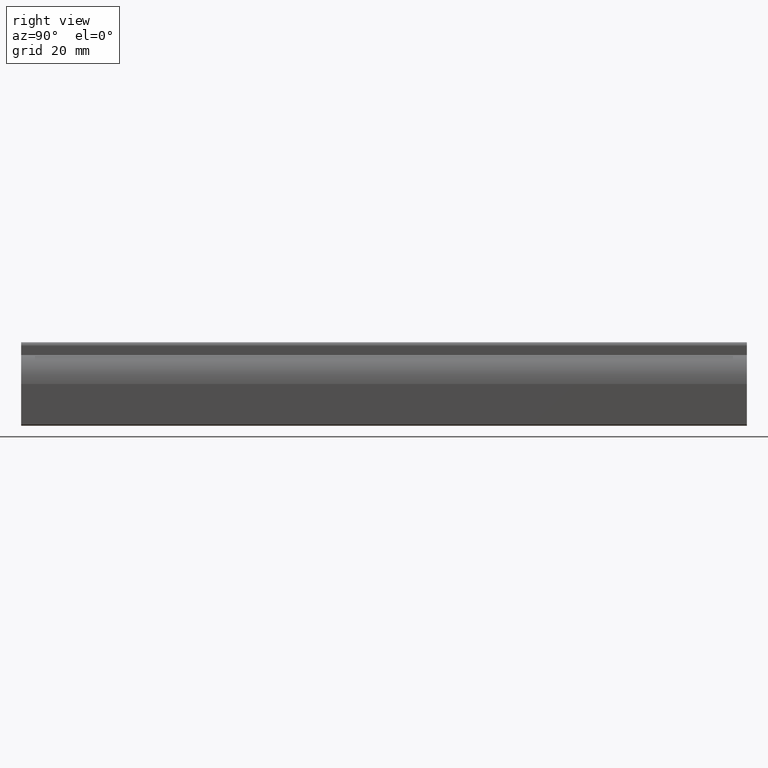
[diagram: clean part render]
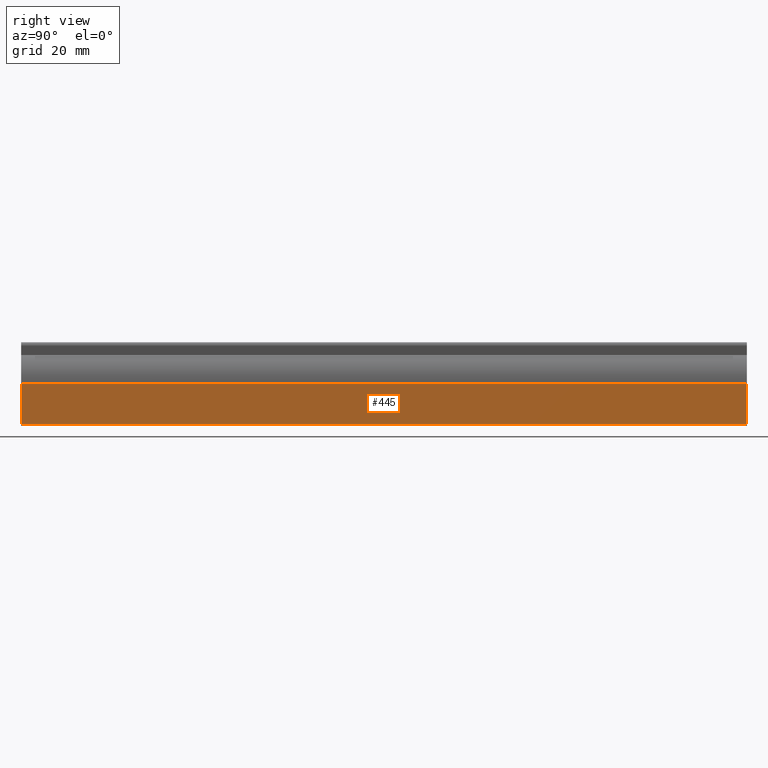
[diagram: same view with one face highlighted and labeled with its STEP entity id]
A machine part, right view. The second image highlights one B-rep face of the part: STEP entity #445.
In plain terms, the highlighted face is a freeform B-spline surface patch.
Its self-contained STEP definition (entity closure, byte-faithful):
#123=CARTESIAN_POINT('',(5.0,0.0,-22.500000000000000));
#124=VERTEX_POINT('',#123);
#138=CARTESIAN_POINT('',(5.0,0.0,-11.500000000000000));
#139=VERTEX_POINT('',#138);
#140=CARTESIAN_POINT('',(5.0,0.0,-22.500000000000000));
#141=CARTESIAN_POINT('',(5.0,0.0,-11.500000000000000));
#142=QUASI_UNIFORM_CURVE('',1,(#140,#141),.UNSPECIFIED.,.F.,.U.);
#143=EDGE_CURVE('',#124,#139,#142,.T.);
#245=CARTESIAN_POINT('',(5.0,200.0,-11.500000000000000));
#246=VERTEX_POINT('',#245);
#260=CARTESIAN_POINT('',(5.0,200.0,-22.500000000000000));
#261=VERTEX_POINT('',#260);
#262=CARTESIAN_POINT('',(5.0,200.0,-22.500000000000000));
#263=CARTESIAN_POINT('',(5.0,200.0,-11.500000000000000));
#264=QUASI_UNIFORM_CURVE('',1,(#262,#263),.UNSPECIFIED.,.F.,.U.);
#265=EDGE_CURVE('',#261,#246,#264,.T.);
#420=CARTESIAN_POINT('',(5.0,200.0,-11.500000000000000));
#421=CARTESIAN_POINT('',(5.0,0.0,-11.500000000000000));
#422=QUASI_UNIFORM_CURVE('',1,(#420,#421),.UNSPECIFIED.,.F.,.U.);
#423=EDGE_CURVE('',#246,#139,#422,.T.);
#430=CARTESIAN_POINT('',(5.0,-9.989999612361194,-10.950550021320129));
#431=CARTESIAN_POINT('',(5.0,-9.989999612361194,-23.049450273722861));
#432=CARTESIAN_POINT('',(5.0,209.990004976779200,-10.950550021320129));
#433=CARTESIAN_POINT('',(5.0,209.990004976779200,-23.049450273722861));
#434=B_SPLINE_SURFACE_WITH_KNOTS('',1,1,((#430,#432),(#431,#433)),.UNSPECIFIED.,.F.,.F.,.U.,(2,2),(2,2),(0.0,12.098900252402730),(0.0,219.980004589140410),.UNSPECIFIED.);
#435=ORIENTED_EDGE('',*,*,#143,.F.);
#436=CARTESIAN_POINT('',(5.0,200.0,-22.500000000000000));
#437=CARTESIAN_POINT('',(5.0,0.0,-22.500000000000000));
#438=QUASI_UNIFORM_CURVE('',1,(#436,#437),.UNSPECIFIED.,.F.,.U.);
#439=EDGE_CURVE('',#261,#124,#438,.T.);
#440=ORIENTED_EDGE('',*,*,#439,.F.);
#441=ORIENTED_EDGE('',*,*,#265,.T.);
#442=ORIENTED_EDGE('',*,*,#423,.T.);
#443=EDGE_LOOP('',(#435,#440,#441,#442));
#444=FACE_OUTER_BOUND('',#443,.T.);
#445=ADVANCED_FACE('',(#444),#434,.T.);